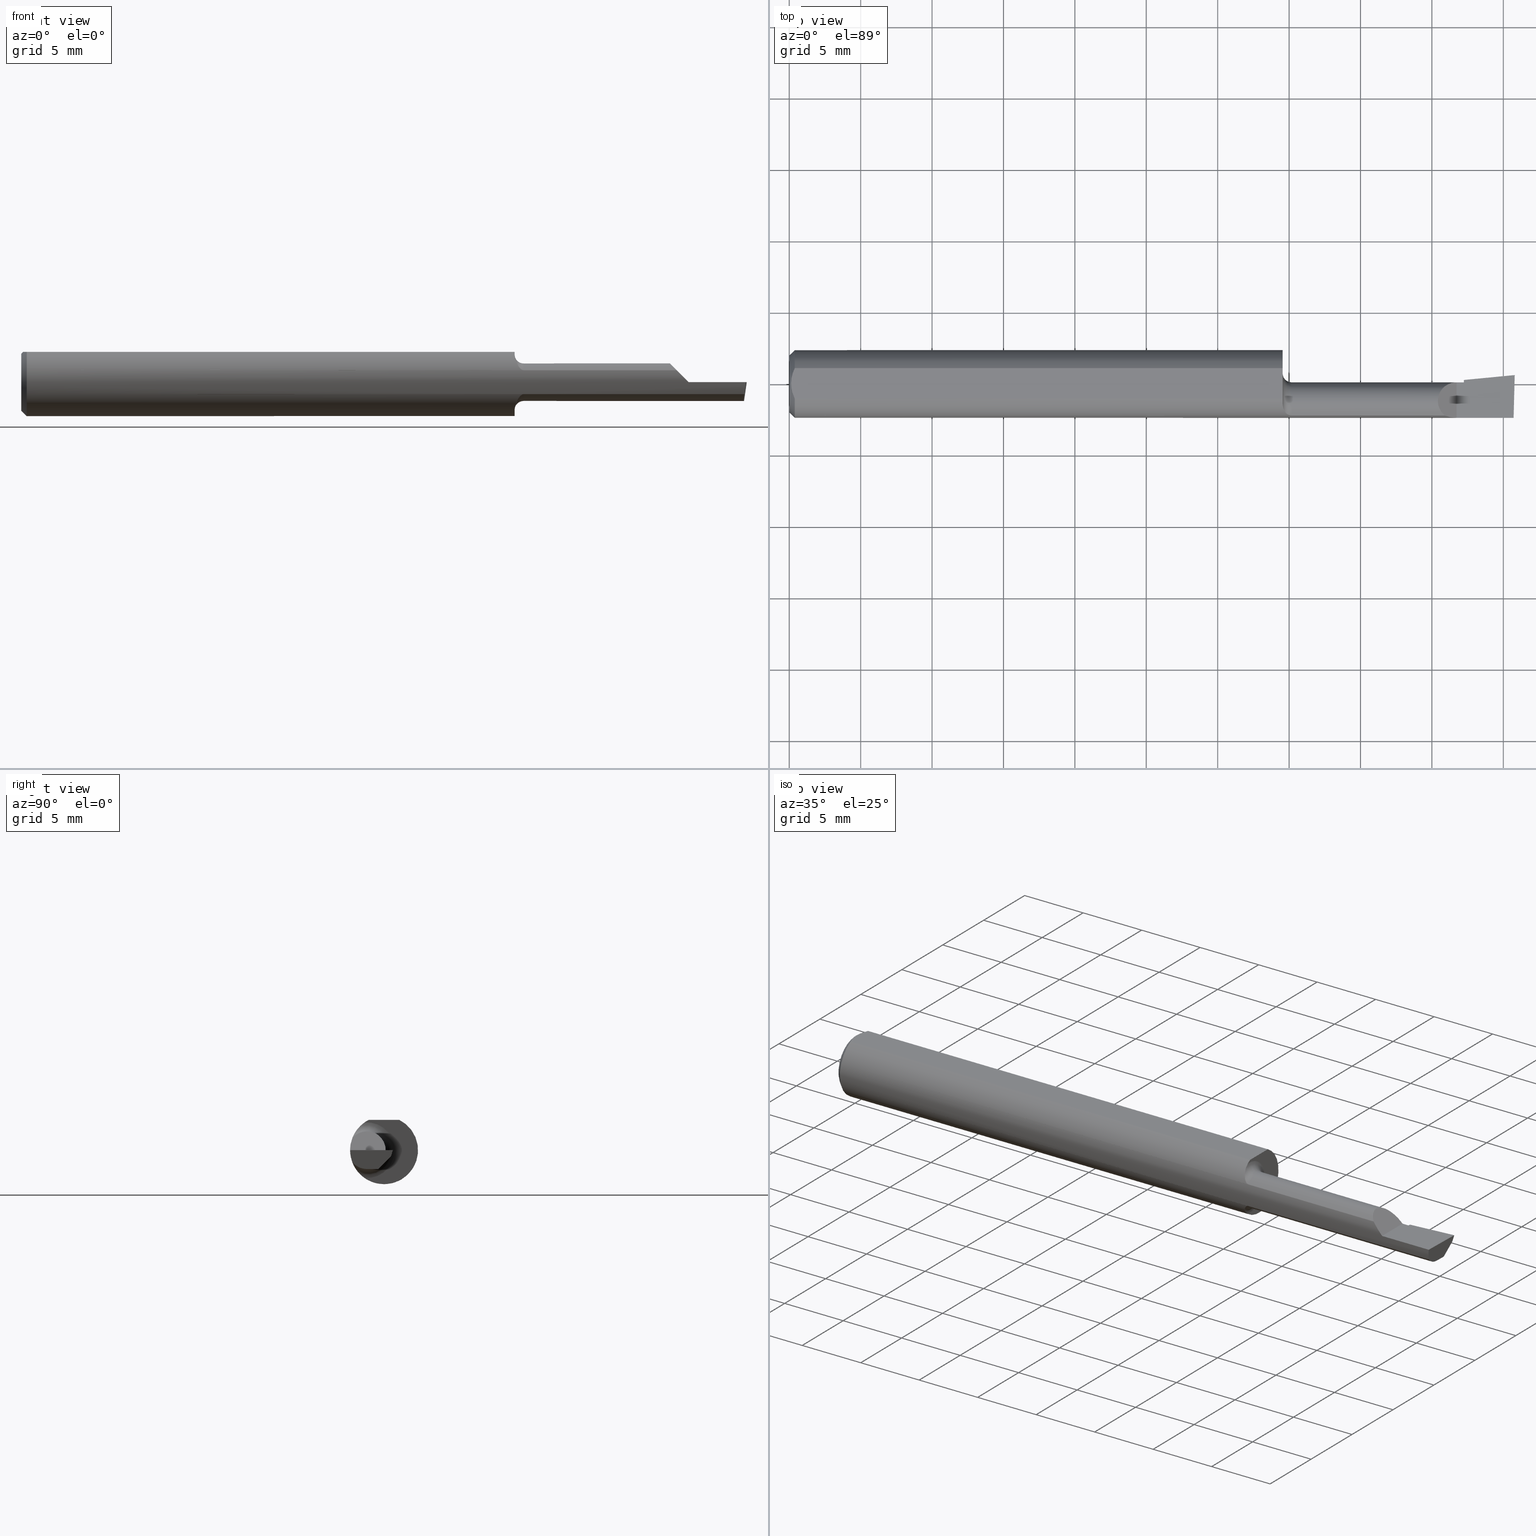
[diagram: canonical four-view strip — front | top / right | iso, engineering-drawing reading convention]
A machine part, canonical four-view strip (front | top / right | iso — engineering-drawing reading convention). The complete STEP part file that produces these views, byte-faithful:
ISO-10303-21;
HEADER;
FILE_DESCRIPTION (( 'STEP AP203' ),
    '1' );
FILE_NAME ('217297-B120600.STEP',
    '2024-04-22T22:32:10',
    ( '' ),
    ( '' ),
    'SwSTEP 2.0',
    'SolidWorks 2022',
    '' );
FILE_SCHEMA (( 'CONFIG_CONTROL_DESIGN' ));
ENDSEC;

DATA;
#1 = VERTEX_POINT ( 'NONE', #547 ) ;
#2 = PERSON_AND_ORGANIZATION ( #248, #254 ) ;
#3 = VECTOR ( 'NONE', #59, 39.37007874015748143 ) ;
#4 = CARTESIAN_POINT ( 'NONE',  ( 1.996910061254836721, -0.09360000000000012754, -6.663204267364690931E-17 ) ) ;
#5 = VERTEX_POINT ( 'NONE', #167 ) ;
#6 = DATE_TIME_ROLE ( 'classification_date' ) ;
#7 = CARTESIAN_POINT ( 'NONE',  ( 1.859999999999999876, 0.004399999999999992459, 1.030335658007946637E-15 ) ) ;
#8 = AXIS2_PLACEMENT_3D ( 'NONE', #170, #459, #118 ) ;
#9 = ORIENTED_EDGE ( 'NONE', *, *, #255, .F. ) ;
#10 = COORDINATED_UNIVERSAL_TIME_OFFSET ( 8, 0, .BEHIND. ) ;
#11 = ADVANCED_FACE ( 'NONE', ( #349 ), #427, .F. ) ;
#12 = ORIENTED_EDGE ( 'NONE', *, *, #304, .F. ) ;
#13 = VERTEX_POINT ( 'NONE', #493 ) ;
#14 = APPROVAL_PERSON_ORGANIZATION ( #494, #166, #62 ) ;
#15 = CARTESIAN_POINT ( 'NONE',  ( 1.991742529076753199, -0.04749999999999999362, -0.05189999999999998087 ) ) ;
#16 = CARTESIAN_POINT ( 'NONE',  ( 1.992819506803471308, -0.2498119721683277616, -6.435184055121738529E-17 ) ) ;
#17 = EDGE_CURVE ( 'NONE', #445, #13, #540, .T. ) ;
#18 = COORDINATED_UNIVERSAL_TIME_OFFSET ( 8, 0, .BEHIND. ) ;
#19 = CARTESIAN_POINT ( 'NONE',  ( 1.359999999999999876, -0.04209513035969843220, 0.08360000000000000764 ) ) ;
#20 = AXIS2_PLACEMENT_3D ( 'NONE', #341, #532, #295 ) ;
#21 = CARTESIAN_POINT ( 'NONE',  ( 5.659797890829555466E-31, -0.09359999999999998876, 1.030335658007946046E-15 ) ) ;
#22 = DIRECTION ( 'NONE',  ( 0.000000000000000000, -1.000000000000000000, 0.000000000000000000 ) ) ;
#23 = DIRECTION ( 'NONE',  ( -4.268512490100411279E-18, -1.000000000000000000, 0.000000000000000000 ) ) ;
#24 = DIRECTION ( 'NONE',  ( -1.000000000000000000, 4.268512490100411279E-18, -0.000000000000000000 ) ) ;
#25 = ADVANCED_FACE ( 'NONE', ( #448 ), #450, .T. ) ;
#26 = AXIS2_PLACEMENT_3D ( 'NONE', #356, #544, #70 ) ;
#27 = VERTEX_POINT ( 'NONE', #264 ) ;
#28 = CARTESIAN_POINT ( 'NONE',  ( 1.384999999999999787, -0.04749999999999999362, 0.000000000000000000 ) ) ;
#29 = AXIS2_PLACEMENT_3D ( 'NONE', #433, #226, #421 ) ;
#30 = CARTESIAN_POINT ( 'NONE',  ( 1.859999999999999876, 0.01091953325234439054, 0.000000000000000000 ) ) ;
#31 = VECTOR ( 'NONE', #179, 39.37007874015748143 ) ;
#32 = DIRECTION ( 'NONE',  ( 0.000000000000000000, 1.000000000000000000, 0.000000000000000000 ) ) ;
#33 = DIRECTION ( 'NONE',  ( -0.7071067811865516806, 0.000000000000000000, 0.7071067811865433539 ) ) ;
#34 = ORIENTED_EDGE ( 'NONE', *, *, #488, .T. ) ;
#35 = LINE ( 'NONE', #601, #451 ) ;
#36 = CARTESIAN_POINT ( 'NONE',  ( 1.360447921123109527, -0.06231628215915097774, 0.07004382716008764054 ) ) ;
#37 = AXIS2_PLACEMENT_3D ( 'NONE', #612, #325, #230 ) ;
#38 = APPLICATION_PROTOCOL_DEFINITION ( 'international standard', 'config_control_design', 1994, #129 ) ;
#39 = CARTESIAN_POINT ( 'NONE',  ( 1.859999999999999876, -0.02123896744732987896, -0.04476570304672537748 ) ) ;
#40 = AXIS2_PLACEMENT_3D ( 'NONE', #551, #594, #72 ) ;
#41 = CC_DESIGN_PERSON_AND_ORGANIZATION_ASSIGNMENT ( #529, #347, ( #309 ) ) ;
#42 = CARTESIAN_POINT ( 'NONE',  ( 1.828723181872633941, -0.09360000000000001652, 0.01127681812736603534 ) ) ;
#43 = EDGE_CURVE ( 'NONE', #262, #510, #256, .T. ) ;
#44 = CARTESIAN_POINT ( 'NONE',  ( 1.859999999999999876, -0.01401885001904131824, -0.03732347359622880528 ) ) ;
#45 = VERTEX_POINT ( 'NONE', #113 ) ;
#46 = ADVANCED_FACE ( 'NONE', ( #595 ), #305, .F. ) ;
#47 = CARTESIAN_POINT ( 'NONE',  ( 1.622500000000000053, -0.08761684210526321515, 0.03292793615611789432 ) ) ;
#48 = ORIENTED_EDGE ( 'NONE', *, *, #588, .T. ) ;
#49 = CIRCLE ( 'NONE', #306, 0.09360000000000001652 ) ;
#50 = APPROVAL ( #389, 'UNSPECIFIED' ) ;
#51 = ORIENTED_EDGE ( 'NONE', *, *, #124, .T. ) ;
#52 = VECTOR ( 'NONE', #233, 39.37007874015748143 ) ;
#53 = EDGE_LOOP ( 'NONE', ( #191, #538 ) ) ;
#54 = ORIENTED_EDGE ( 'NONE', *, *, #606, .T. ) ;
#55 = CC_DESIGN_PERSON_AND_ORGANIZATION_ASSIGNMENT ( #2, #381, ( #324 ) ) ;
#56 = PERSON_AND_ORGANIZATION ( #248, #254 ) ;
#57 = DIRECTION ( 'NONE',  ( 0.7071067811865391350, 8.659560562355035164E-17, 0.7071067811865558994 ) ) ;
#58 = ORIENTED_EDGE ( 'NONE', *, *, #460, .T. ) ;
#59 = DIRECTION ( 'NONE',  ( -1.000000000000000000, -0.000000000000000000, -0.000000000000000000 ) ) ;
#60 = CIRCLE ( 'NONE', #94, 0.05189999999999998781 ) ;
#61 = EDGE_LOOP ( 'NONE', ( #388, #68, #145, #276 ) ) ;
#62 = APPROVAL_ROLE ( '' ) ;
#63 = CARTESIAN_POINT ( 'NONE',  ( 1.840000000000000080, 0.004399999999999856283, 1.959434878635762025E-17 ) ) ;
#64 = EDGE_CURVE ( 'NONE', #428, #5, #206, .T. ) ;
#65 = DIRECTION ( 'NONE',  ( -1.000000000000000000, 4.268512490100411279E-18, 0.000000000000000000 ) ) ;
#66 = PERSON_AND_ORGANIZATION_ROLE ( 'creator' ) ;
#67 = CARTESIAN_POINT ( 'NONE',  ( 0.000000000000000000, 0.04209513035969837669, 0.08360000000000000764 ) ) ;
#68 = ORIENTED_EDGE ( 'NONE', *, *, #543, .T. ) ;
#69 = CARTESIAN_POINT ( 'NONE',  ( 1.359999999999999876, 0.1436000000000000332, 0.08359999999999999376 ) ) ;
#70 = DIRECTION ( 'NONE',  ( -4.268512490100411279E-18, -1.000000000000000000, 0.000000000000000000 ) ) ;
#71 = DIRECTION ( 'NONE',  ( 0.1219104985252683904, 0.000000000000000000, 0.9925410975618695897 ) ) ;
#72 = DIRECTION ( 'NONE',  ( 0.000000000000000000, -1.000000000000000000, 0.000000000000000000 ) ) ;
#73 = FACE_OUTER_BOUND ( 'NONE', #369, .T. ) ;
#74 = ADVANCED_FACE ( 'NONE', ( #395 ), #504, .T. ) ;
#75 = CIRCLE ( 'NONE', #8, 0.07859999999999965625 ) ;
#76 = CARTESIAN_POINT ( 'NONE',  ( 1.840000000000000080, -0.2500000000000000555, 1.959434878635762025E-17 ) ) ;
#77 = VECTOR ( 'NONE', #249, 39.37007874015748143 ) ;
#78 = EDGE_LOOP ( 'NONE', ( #169, #533, #579 ) ) ;
#79 = DIRECTION ( 'NONE',  ( 0.9953961983671787417, 0.09584575252022461966, -5.467869873542577569E-16 ) ) ;
#80 = CARTESIAN_POINT ( 'NONE',  ( 0.000000000000000000, 0.000000000000000000, 0.000000000000000000 ) ) ;
#81 = EDGE_LOOP ( 'NONE', ( #286, #335, #244 ) ) ;
#82 = CARTESIAN_POINT ( 'NONE',  ( 1.359999999999999876, 0.000000000000000000, 0.000000000000000000 ) ) ;
#83 = VECTOR ( 'NONE', #122, 39.37007874015748854 ) ;
#84 = CARTESIAN_POINT ( 'NONE',  ( 1.360000000000000542, -0.06265771844804363111, -0.07038493979599889927 ) ) ;
#85 = CARTESIAN_POINT ( 'NONE',  ( 1.373927022897598604, -0.08480630317146348185, 0.03967462311308213307 ) ) ;
#86 = VECTOR ( 'NONE', #265, 39.37007874015748854 ) ;
#87 = EDGE_CURVE ( 'NONE', #262, #445, #591, .T. ) ;
#88 = LINE ( 'NONE', #44, #537 ) ;
#89 = VERTEX_POINT ( 'NONE', #39 ) ;
#90 = CARTESIAN_POINT ( 'NONE',  ( 1.369440191089343450, -0.08177118545005535033, -0.04577359403162513385 ) ) ;
#91 = ORIENTED_EDGE ( 'NONE', *, *, #368, .T. ) ;
#92 = CARTESIAN_POINT ( 'NONE',  ( 1.859999999999999876, -0.2500000000000000555, 8.608030207862190690E-18 ) ) ;
#93 = VERTEX_POINT ( 'NONE', #472 ) ;
#94 = AXIS2_PLACEMENT_3D ( 'NONE', #607, #130, #362 ) ;
#95 = DIRECTION ( 'NONE',  ( 1.000000000000000000, 0.000000000000000000, 0.000000000000000000 ) ) ;
#96 = ORIENTED_EDGE ( 'NONE', *, *, #431, .T. ) ;
#97 = DATE_AND_TIME ( #299, #184 ) ;
#98 = CARTESIAN_POINT ( 'NONE',  ( 0.005000000000000236026, 1.025183009042025117E-17, 0.08360000000000000764 ) ) ;
#99 = APPROVAL ( #385, 'UNSPECIFIED' ) ;
#100 = ORIENTED_EDGE ( 'NONE', *, *, #527, .F. ) ;
#101 = APPROVAL_DATE_TIME ( #343, #50 ) ;
#102 = ADVANCED_FACE ( 'NONE', ( #223 ), #365, .F. ) ;
#103 = CARTESIAN_POINT ( 'NONE',  ( 1.991742529076753199, -0.04749999999999999362, -0.05189999999999998087 ) ) ;
#104 = EDGE_LOOP ( 'NONE', ( #561, #156 ) ) ;
#105 = COORDINATED_UNIVERSAL_TIME_OFFSET ( 8, 0, .BEHIND. ) ;
#106 = VECTOR ( 'NONE', #288, 39.37007874015748143 ) ;
#107 = EDGE_CURVE ( 'NONE', #89, #5, #88, .T. ) ;
#108 = CARTESIAN_POINT ( 'NONE',  ( 2.009953961983672155, 0.02535845752520198698, -6.829619984160658046E-17 ) ) ;
#109 = CIRCLE ( 'NONE', #590, 0.05189999999999997393 ) ;
#110 = ORIENTED_EDGE ( 'NONE', *, *, #208, .T. ) ;
#111 = PERSON_AND_ORGANIZATION ( #248, #254 ) ;
#112 = CARTESIAN_POINT ( 'NONE',  ( 0.005000000000000236026, 1.025183009042025117E-17, 0.08360000000000000764 ) ) ;
#113 = CARTESIAN_POINT ( 'NONE',  ( 0.01499999999999999944, -0.04209513035969835587, 0.08360000000000000764 ) ) ;
#114 = DIRECTION ( 'NONE',  ( 0.000000000000000000, 0.000000000000000000, 1.000000000000000000 ) ) ;
#115 = CIRCLE ( 'NONE', #196, 0.05189999999999998781 ) ;
#116 = ADVANCED_FACE ( 'NONE', ( #171 ), #516, .T. ) ;
#117 = CARTESIAN_POINT ( 'NONE',  ( 1.840000000000000080, -0.2500000000000000555, 1.959434878635762025E-17 ) ) ;
#118 = DIRECTION ( 'NONE',  ( 0.000000000000000000, 0.000000000000000000, 1.000000000000000000 ) ) ;
#119 = ORIENTED_EDGE ( 'NONE', *, *, #238, .F. ) ;
#120 = PRODUCT_DEFINITION_SHAPE ( 'NONE', 'NONE',  #162 ) ;
#121 = CARTESIAN_POINT ( 'NONE',  ( 0.000000000000000000, 1.054420894065869177E-17, 0.07859999999999965625 ) ) ;
#122 = DIRECTION ( 'NONE',  ( -0.9953961983671800740, -0.09584575252021028391, -2.116984158397002112E-18 ) ) ;
#123 = PRODUCT_DEFINITION_FORMATION_WITH_SPECIFIED_SOURCE ( 'ANY', '', #309, .NOT_KNOWN. ) ;
#124 = EDGE_CURVE ( 'NONE', #13, #279, #132, .T. ) ;
#125 = DIRECTION ( 'NONE',  ( 0.7071067811865391350, 0.000000000000000000, -0.7071067811865558994 ) ) ;
#126 = LINE ( 'NONE', #67, #266 ) ;
#127 = B_SPLINE_CURVE_WITH_KNOTS ( 'NONE', 3,
 ( #140, #558, #36, #416, #177, #363, #420, #85, #600, #560, #506, #134 ),
 .UNSPECIFIED., .F., .F.,
 ( 4, 2, 2, 2, 2, 4 ),
 ( 1.138943784590769715E-05, 0.0004225593089546684123, 0.0008337291800634291867, 0.001244899051172189798, 0.001450483986726570267, 0.001656068922280950952 ),
 .UNSPECIFIED. ) ;
#128 = ORIENTED_EDGE ( 'NONE', *, *, #180, .F. ) ;
#129 = APPLICATION_CONTEXT ( 'configuration controlled 3d designs of mechanical parts and assemblies' ) ;
#130 = DIRECTION ( 'NONE',  ( -1.000000000000000000, 4.268512490100411279E-18, -0.000000000000000000 ) ) ;
#131 = EDGE_CURVE ( 'NONE', #478, #481, #315, .T. ) ;
#132 = LINE ( 'NONE', #278, #146 ) ;
#133 = CARTESIAN_POINT ( 'NONE',  ( 1.859999999999999876, -0.01401885001904131824, -0.03732347359622880528 ) ) ;
#134 = CARTESIAN_POINT ( 'NONE',  ( 1.384999999999999787, -0.08761684210526317351, 0.03292793615611790126 ) ) ;
#135 = ORIENTED_EDGE ( 'NONE', *, *, #522, .F. ) ;
#136 = CARTESIAN_POINT ( 'NONE',  ( 1.817628038131437584, -0.09158396120079809188, 0.02237196186856219363 ) ) ;
#137 = DIRECTION ( 'NONE',  ( 1.000000000000000000, -4.268512490100411279E-18, 0.000000000000000000 ) ) ;
#138 = LINE ( 'NONE', #364, #371 ) ;
#139 = ADVANCED_BREP_SHAPE_REPRESENTATION ( '217297-B120600', ( #188, #578 ), #418 ) ;
#140 = CARTESIAN_POINT ( 'NONE',  ( 1.359999999999999876, -0.05372210526315804313, 0.07664786628533222512 ) ) ;
#141 = ORIENTED_EDGE ( 'NONE', *, *, #488, .F. ) ;
#142 = AXIS2_PLACEMENT_3D ( 'NONE', #406, #599, #400 ) ;
#143 = ORIENTED_EDGE ( 'NONE', *, *, #43, .F. ) ;
#144 = CARTESIAN_POINT ( 'NONE',  ( 1.359999999999999876, -0.05372210526315804313, -0.07664786628533222512 ) ) ;
#145 = ORIENTED_EDGE ( 'NONE', *, *, #616, .F. ) ;
#146 = VECTOR ( 'NONE', #137, 39.37007874015748143 ) ;
#147 = APPROVAL_ROLE ( '' ) ;
#148 = ORIENTED_EDGE ( 'NONE', *, *, #107, .F. ) ;
#149 = AXIS2_PLACEMENT_3D ( 'NONE', #581, #489, #447 ) ;
#150 = PLANE ( 'NONE',  #20 ) ;
#151 = EDGE_CURVE ( 'NONE', #1, #220, #603, .T. ) ;
#152 = ORIENTED_EDGE ( 'NONE', *, *, #368, .F. ) ;
#153 = PERSON_AND_ORGANIZATION_ROLE ( 'creator' ) ;
#154 = CARTESIAN_POINT ( 'NONE',  ( 1.859999999999999876, -0.04749999999999999362, -0.05189999999999998087 ) ) ;
#155 = CC_DESIGN_APPROVAL ( #166, ( #123 ) ) ;
#156 = ORIENTED_EDGE ( 'NONE', *, *, #131, .T. ) ;
#157 = EDGE_CURVE ( 'NONE', #342, #458, #379, .T. ) ;
#158 = MECHANICAL_CONTEXT ( 'NONE', #129, 'mechanical' ) ;
#159 = AXIS2_PLACEMENT_3D ( 'NONE', #549, #203, #552 ) ;
#160 = CARTESIAN_POINT ( 'NONE',  ( 0.01203648650249650523, 0.03550565407121123590, 0.08360000000000000764 ) ) ;
#161 = DIRECTION ( 'NONE',  ( 0.000000000000000000, 0.000000000000000000, 1.000000000000000000 ) ) ;
#162 = PRODUCT_DEFINITION ( 'UNKNOWN', '', #123, #463 ) ;
#163 = DIRECTION ( 'NONE',  ( 1.000000000000000000, -4.268512490100411279E-18, 0.000000000000000000 ) ) ;
#164 = APPLICATION_CONTEXT ( 'configuration controlled 3d designs of mechanical parts and assemblies' ) ;
#165 = CARTESIAN_POINT ( 'NONE',  ( 1.993022307651336700, -0.08761684210526321515, -0.03292793615611789432 ) ) ;
#166 = APPROVAL ( #482, 'UNSPECIFIED' ) ;
#167 = CARTESIAN_POINT ( 'NONE',  ( 1.859999999999999876, -0.02816034256933547600, -0.05189999999999998087 ) ) ;
#168 = LINE ( 'NONE', #268, #86 ) ;
#169 = ORIENTED_EDGE ( 'NONE', *, *, #301, .F. ) ;
#170 = CARTESIAN_POINT ( 'NONE',  ( 0.000000000000000000, 0.000000000000000000, 0.000000000000000000 ) ) ;
#171 = FACE_OUTER_BOUND ( 'NONE', #571, .T. ) ;
#172 = EDGE_CURVE ( 'NONE', #583, #567, #49, .T. ) ;
#173 = CARTESIAN_POINT ( 'NONE',  ( 1.384999999999999787, -0.08761684210526317351, -0.03292793615611790820 ) ) ;
#174 = DIRECTION ( 'NONE',  ( 0.000000000000000000, 0.000000000000000000, 1.000000000000000000 ) ) ;
#175 = DIRECTION ( 'NONE',  ( -2.972230601656782806E-18, -0.6963153109074925462, -0.7177360153954948085 ) ) ;
#176 = AXIS2_PLACEMENT_3D ( 'NONE', #403, #596, #32 ) ;
#177 = CARTESIAN_POINT ( 'NONE',  ( 1.363573898438560805, -0.07331853621787791375, 0.05840549129485483881 ) ) ;
#178 = ORIENTED_EDGE ( 'NONE', *, *, #336, .F. ) ;
#179 = DIRECTION ( 'NONE',  ( -1.000000000000000000, 5.691349986800549142E-18, -0.000000000000000000 ) ) ;
#180 = EDGE_CURVE ( 'NONE', #45, #375, #520, .T. ) ;
#181 = DIRECTION ( 'NONE',  ( 4.268512490100411279E-18, 1.000000000000000000, 0.000000000000000000 ) ) ;
#182 = ORIENTED_EDGE ( 'NONE', *, *, #234, .T. ) ;
#183 = CARTESIAN_POINT ( 'NONE',  ( 1.359999999999999876, -0.05372210526315804313, -0.07664786628533222512 ) ) ;
#184 = LOCAL_TIME ( 15, 32, 10.00000000000000000, #105 ) ;
#185 = CARTESIAN_POINT ( 'NONE',  ( 1.859999999999999876, -0.04749999999999999362, 0.000000000000000000 ) ) ;
#186 = AXIS2_PLACEMENT_3D ( 'NONE', #267, #391, #161 ) ;
#187 = ORIENTED_EDGE ( 'NONE', *, *, #172, .T. ) ;
#188 = MANIFOLD_SOLID_BREP ( 'Extrude7', #415 ) ;
#189 = ORIENTED_EDGE ( 'NONE', *, *, #460, .F. ) ;
#190 = CARTESIAN_POINT ( 'NONE',  ( 1.359999999999999876, -0.05372210526315804313, 0.07664786628533222512 ) ) ;
#191 = ORIENTED_EDGE ( 'NONE', *, *, #304, .T. ) ;
#192 = ORIENTED_EDGE ( 'NONE', *, *, #409, .F. ) ;
#193 = CARTESIAN_POINT ( 'NONE',  ( 1.859999999999999876, 0.005698073100777778163, -0.01700000000000000122 ) ) ;
#194 =( BOUNDED_CURVE ( )  B_SPLINE_CURVE ( 3, ( #521, #42, #136, #366 ),
 .UNSPECIFIED., .F., .T. ) 
 B_SPLINE_CURVE_WITH_KNOTS ( ( 4, 4 ),
 ( 4.712388980384689674, 5.071876106261395734 ),
 .UNSPECIFIED. ) 
 CURVE ( )  GEOMETRIC_REPRESENTATION_ITEM ( )  RATIONAL_B_SPLINE_CURVE ( ( 1.000000000000000000, 0.9892597135044076673, 0.9892597135044076673, 1.000000000000000000 ) ) 
 REPRESENTATION_ITEM ( '' )  );
#195 = ORIENTED_EDGE ( 'NONE', *, *, #620, .F. ) ;
#196 = AXIS2_PLACEMENT_3D ( 'NONE', #185, #367, #566 ) ;
#197 = DATE_TIME_ROLE ( 'creation_date' ) ;
#198 = CARTESIAN_POINT ( 'NONE',  ( 1.761940995672496957, -0.05057322517486229768, 0.07805900432750242923 ) ) ;
#199 = ORIENTED_EDGE ( 'NONE', *, *, #620, .T. ) ;
#200 = DIRECTION ( 'NONE',  ( 0.000000000000000000, 0.000000000000000000, 1.000000000000000000 ) ) ;
#201 = EDGE_LOOP ( 'NONE', ( #189, #430, #622, #128, #9 ) ) ;
#202 = CARTESIAN_POINT ( 'NONE',  ( 1.991784456001939763, -0.07759022324566727802, -0.04514359047872660430 ) ) ;
#203 = DIRECTION ( 'NONE',  ( 0.000000000000000000, -1.189000693621284344E-16, -1.000000000000000000 ) ) ;
#204 = CALENDAR_DATE ( 2024, 22, 4 ) ;
#205 = DIRECTION ( 'NONE',  ( 0.000000000000000000, 1.000000000000000000, 4.268512490100410663E-17 ) ) ;
#206 = LINE ( 'NONE', #497, #83 ) ;
#207 = CARTESIAN_POINT ( 'NONE',  ( 0.000000000000000000, 0.000000000000000000, 0.000000000000000000 ) ) ;
#208 = EDGE_CURVE ( 'NONE', #555, #487, #127, .T. ) ;
#209 = DIRECTION ( 'NONE',  ( -1.000000000000000000, -0.000000000000000000, -0.000000000000000000 ) ) ;
#210 = DIRECTION ( 'NONE',  ( -1.000000000000000000, -0.000000000000000000, -0.000000000000000000 ) ) ;
#211 = CARTESIAN_POINT ( 'NONE',  ( 1.253289949938072301, -0.04749999999999999362, 3.418835249456273698E-16 ) ) ;
#212 = DIRECTION ( 'NONE',  ( 0.000000000000000000, 0.000000000000000000, -1.000000000000000000 ) ) ;
#213 = ADVANCED_FACE ( 'NONE', ( #274 ), #358, .F. ) ;
#214 = ORIENTED_EDGE ( 'NONE', *, *, #151, .F. ) ;
#215 = CARTESIAN_POINT ( 'NONE',  ( 1.996910061254836721, -0.09360000000000012754, -6.663204267364690931E-17 ) ) ;
#216 = EDGE_CURVE ( 'NONE', #89, #228, #115, .T. ) ;
#217 = DIRECTION ( 'NONE',  ( -1.000000000000000000, 4.268512490100411279E-18, 0.000000000000000000 ) ) ;
#218 = CARTESIAN_POINT ( 'NONE',  ( 0.000000000000000000, 0.000000000000000000, -0.07859999999999965625 ) ) ;
#219 = DIRECTION ( 'NONE',  ( 0.000000000000000000, 0.000000000000000000, 1.000000000000000000 ) ) ;
#220 = VERTEX_POINT ( 'NONE', #328 ) ;
#221 = LINE ( 'NONE', #69, #405 ) ;
#222 = VECTOR ( 'NONE', #402, 39.37007874015748854 ) ;
#223 = FACE_OUTER_BOUND ( 'NONE', #78, .T. ) ;
#224 = B_SPLINE_CURVE_WITH_KNOTS ( 'NONE', 3,
 ( #173, #568, #241, #229, #565, #90, #277, #333, #84, #144 ),
 .UNSPECIFIED., .F., .F.,
 ( 4, 2, 2, 2, 4 ),
 ( 1.963033868560647056E-07, 0.0002078258643200496373, 0.0004154554252532432221, 0.0008307145471196418843, 0.001661232790852446147 ),
 .UNSPECIFIED. ) ;
#225 = ADVANCED_FACE ( 'NONE', ( #519 ), #282, .F. ) ;
#226 = DIRECTION ( 'NONE',  ( -0.06894566448119621160, 0.7160281025913035613, -0.6946583704589933683 ) ) ;
#227 = DIRECTION ( 'NONE',  ( -1.000000000000000000, 4.268512490100411279E-18, -0.000000000000000000 ) ) ;
#228 = VERTEX_POINT ( 'NONE', #554 ) ;
#229 = CARTESIAN_POINT ( 'NONE',  ( 1.375623196656931446, -0.08570318752220022762, -0.03767279651384476680 ) ) ;
#230 = DIRECTION ( 'NONE',  ( 0.000000000000000000, -1.000000000000000000, -4.268512490100410663E-17 ) ) ;
#231 = ORIENTED_EDGE ( 'NONE', *, *, #301, .T. ) ;
#232 = LENGTH_MEASURE_WITH_UNIT ( LENGTH_MEASURE( 0.02539999999999999897 ), #377 );
#233 = DIRECTION ( 'NONE',  ( 1.000000000000000000, -4.268512490100411279E-18, 0.000000000000000000 ) ) ;
#234 = EDGE_CURVE ( 'NONE', #342, #567, #126, .T. ) ;
#235 = ORIENTED_EDGE ( 'NONE', *, *, #336, .T. ) ;
#236 =( NAMED_UNIT ( * ) SI_UNIT ( $, .STERADIAN. ) SOLID_ANGLE_UNIT ( ) );
#237 = CIRCLE ( 'NONE', #176, 0.09360000000000001652 ) ;
#238 = EDGE_CURVE ( 'NONE', #1, #298, #374, .T. ) ;
#239 = ORIENTED_EDGE ( 'NONE', *, *, #310, .T. ) ;
#240 = VERTEX_POINT ( 'NONE', #486 ) ;
#241 = CARTESIAN_POINT ( 'NONE',  ( 1.379715439975441882, -0.08710361937740859761, -0.03431086475148217158 ) ) ;
#242 = ORIENTED_EDGE ( 'NONE', *, *, #131, .F. ) ;
#243 = SECURITY_CLASSIFICATION_LEVEL ( 'unclassified' ) ;
#244 = ORIENTED_EDGE ( 'NONE', *, *, #319, .F. ) ;
#245 = DATE_AND_TIME ( #541, #572 ) ;
#246 = CARTESIAN_POINT ( 'NONE',  ( 1.997999968238723945, 0.02048992710402969958, -0.01544976510332455449 ) ) ;
#247 = VERTEX_POINT ( 'NONE', #259 ) ;
#248 = PERSON ( 'UNSPECIFIED', 'UNSPECIFIED', 'UNSPECIFIED', ('UNSPECIFIED'), ('UNSPECIFIED'), ('UNSPECIFIED') ) ;
#249 = DIRECTION ( 'NONE',  ( 0.1053106618241601428, 0.6976485211320175850, 0.7086580314005240799 ) ) ;
#250 = ORIENTED_EDGE ( 'NONE', *, *, #440, .T. ) ;
#251 = EDGE_LOOP ( 'NONE', ( #178, #586, #434, #446, #517 ) ) ;
#252 = COORDINATED_UNIVERSAL_TIME_OFFSET ( 8, 0, .BEHIND. ) ;
#253 = DIRECTION ( 'NONE',  ( -0.09165774897393341725, 0.9519021185660616613, -0.2923717047227294974 ) ) ;
#254 = ORGANIZATION ( 'UNSPECIFIED', 'UNSPECIFIED', '' ) ;
#255 = EDGE_CURVE ( 'NONE', #351, #45, #436, .T. ) ;
#256 = LINE ( 'NONE', #16, #222 ) ;
#257 = CALENDAR_DATE ( 2024, 22, 4 ) ;
#258 = AXIS2_PLACEMENT_3D ( 'NONE', #76, #509, #33 ) ;
#259 = CARTESIAN_POINT ( 'NONE',  ( 1.859999999999999876, 0.01091953325234668211, 1.037248535094399938E-15 ) ) ;
#260 = DIRECTION ( 'NONE',  ( -0.000000000000000000, 1.000000000000000000, -0.000000000000000000 ) ) ;
#261 = CARTESIAN_POINT ( 'NONE',  ( 2.000000000000000000, -0.2500000000000000555, -6.829619984160658046E-17 ) ) ;
#262 = VERTEX_POINT ( 'NONE', #4 ) ;
#263 = FACE_OUTER_BOUND ( 'NONE', #332, .T. ) ;
#264 = CARTESIAN_POINT ( 'NONE',  ( 1.859999999999999876, -0.001959391508022335134, -0.02489303071504973125 ) ) ;
#265 = DIRECTION ( 'NONE',  ( -0.02617694830785725901, -0.9996573249755575929, -4.246274422243611542E-17 ) ) ;
#266 = VECTOR ( 'NONE', #300, 39.37007874015748143 ) ;
#267 = CARTESIAN_POINT ( 'NONE',  ( 0.000000000000000000, 0.000000000000000000, 0.000000000000000000 ) ) ;
#268 = CARTESIAN_POINT ( 'NONE',  ( 1.991748187365210976, -0.04728391868154192129, -0.05189999999999998087 ) ) ;
#269 = CARTESIAN_POINT ( 'NONE',  ( 0.01499999999999999598, 0.000000000000000000, 0.000000000000000000 ) ) ;
#270 = EDGE_LOOP ( 'NONE', ( #473, #404, #528, #312 ) ) ;
#271 = DIRECTION ( 'NONE',  ( -4.268512490100411279E-18, -1.000000000000000000, 1.189000693621284344E-16 ) ) ;
#272 = CARTESIAN_POINT ( 'NONE',  ( 1.622500000000000053, -0.08761684210526321515, -0.03292793615611789432 ) ) ;
#273 = AXIS2_PLACEMENT_3D ( 'NONE', #30, #217, #408 ) ;
#274 = FACE_OUTER_BOUND ( 'NONE', #270, .T. ) ;
#275 = EDGE_CURVE ( 'NONE', #428, #93, #297, .T. ) ;
#276 = ORIENTED_EDGE ( 'NONE', *, *, #444, .T. ) ;
#277 = CARTESIAN_POINT ( 'NONE',  ( 1.367214764395544346, -0.07927709071642491390, -0.05002561729526815160 ) ) ;
#278 = CARTESIAN_POINT ( 'NONE',  ( 2.215357982367771208E-19, 0.004399999999999967305, 1.030335658007946046E-15 ) ) ;
#279 = VERTEX_POINT ( 'NONE', #7 ) ;
#280 = CARTESIAN_POINT ( 'NONE',  ( 2.010452112766631938, 0.02018496383838347050, -0.01700000000000000122 ) ) ;
#281 = ADVANCED_FACE ( 'NONE', ( #346 ), #592, .T. ) ;
#282 = PLANE ( 'NONE',  #273 ) ;
#283 = ORIENTED_EDGE ( 'NONE', *, *, #502, .T. ) ;
#284 = CARTESIAN_POINT ( 'NONE',  ( 1.359999999999999876, 0.04209513035969836975, 0.08360000000000000764 ) ) ;
#285 = CC_DESIGN_APPROVAL ( #99, ( #162 ) ) ;
#286 = ORIENTED_EDGE ( 'NONE', *, *, #216, .F. ) ;
#287 = ORIENTED_EDGE ( 'NONE', *, *, #422, .F. ) ;
#288 = DIRECTION ( 'NONE',  ( 4.268512490100411279E-18, 1.000000000000000000, -2.344761903626518103E-33 ) ) ;
#289 = VECTOR ( 'NONE', #553, 39.37007874015748143 ) ;
#290 = EDGE_LOOP ( 'NONE', ( #214, #34, #617, #54, #152, #455, #380, #329, #432, #338, #182, #424, #100 ) ) ;
#291 = VECTOR ( 'NONE', #205, 39.37007874015748143 ) ;
#292 = APPROVAL_DATE_TIME ( #435, #99 ) ;
#293 = ORIENTED_EDGE ( 'NONE', *, *, #124, .F. ) ;
#294 = APPLICATION_PROTOCOL_DEFINITION ( 'international standard', 'config_control_design', 1994, #164 ) ;
#295 = DIRECTION ( 'NONE',  ( -4.268512490100411279E-18, -1.000000000000000000, 0.000000000000000000 ) ) ;
#296 = ORIENTED_EDGE ( 'NONE', *, *, #238, .T. ) ;
#297 = LINE ( 'NONE', #246, #77 ) ;
#298 = VERTEX_POINT ( 'NONE', #15 ) ;
#299 = CALENDAR_DATE ( 2024, 22, 4 ) ;
#300 = DIRECTION ( 'NONE',  ( 1.000000000000000000, 0.000000000000000000, 0.000000000000000000 ) ) ;
#301 = EDGE_CURVE ( 'NONE', #240, #13, #619, .T. ) ;
#302 = CARTESIAN_POINT ( 'NONE',  ( 1.859999999999999876, 0.01091953325234439054, 0.000000000000000000 ) ) ;
#303 = CARTESIAN_POINT ( 'NONE',  ( 0.01499999999999999598, 0.04209513035969837669, 0.08360000000000000764 ) ) ;
#304 = EDGE_CURVE ( 'NONE', #89, #27, #109, .T. ) ;
#305 = PLANE ( 'NONE',  #159 ) ;
#306 = AXIS2_PLACEMENT_3D ( 'NONE', #82, #320, #467 ) ;
#307 = CARTESIAN_POINT ( 'NONE',  ( 2.000188977433810411, 0.02486059946466786380, 0.001440373173037697452 ) ) ;
#308 = CARTESIAN_POINT ( 'NONE',  ( 1.995524967455634791, -0.09360000000000001652, -0.01127681812736614810 ) ) ;
#309 = PRODUCT ( '217297-B120600', '217297-B120600', '', ( #158 ) ) ;
#310 = EDGE_CURVE ( 'NONE', #375, #342, #407, .T. ) ;
#311 = FACE_OUTER_BOUND ( 'NONE', #373, .T. ) ;
#312 = ORIENTED_EDGE ( 'NONE', *, *, #319, .T. ) ;
#313 = LOCAL_TIME ( 15, 32, 10.00000000000000000, #252 ) ;
#314 = CARTESIAN_POINT ( 'NONE',  ( 1.992583253560378020, -0.01539402727707556845, -0.05189999999999998087 ) ) ;
#315 = CIRCLE ( 'NONE', #604, 0.07859999999999965625 ) ;
#316 = CARTESIAN_POINT ( 'NONE',  ( 1.359999999999999876, 0.02939999999999994007, 0.000000000000000000 ) ) ;
#317 = CARTESIAN_POINT ( 'NONE',  ( 0.01499999999999999598, 0.000000000000000000, -0.09360000000000001652 ) ) ;
#318 = AXIS2_PLACEMENT_3D ( 'NONE', #108, #253, #542 ) ;
#319 = EDGE_CURVE ( 'NONE', #228, #5, #536, .T. ) ;
#320 = DIRECTION ( 'NONE',  ( 1.000000000000000000, -4.268512490100411279E-18, 0.000000000000000000 ) ) ;
#321 = FACE_OUTER_BOUND ( 'NONE', #104, .T. ) ;
#322 = CARTESIAN_POINT ( 'NONE',  ( 0.005975039161239525769, -0.01453776427033148279, 0.08359999999999997988 ) ) ;
#323 = EDGE_LOOP ( 'NONE', ( #110, #96, #353, #287 ) ) ;
#324 = SECURITY_CLASSIFICATION ( '', '', #243 ) ;
#325 = DIRECTION ( 'NONE',  ( -2.429359850419095604E-34, -4.268512490100410663E-17, 1.000000000000000000 ) ) ;
#326 = PLANE ( 'NONE',  #29 ) ;
#327 = VECTOR ( 'NONE', #125, 39.37007874015748143 ) ;
#328 = CARTESIAN_POINT ( 'NONE',  ( 1.384999999999999787, -0.08761684210526317351, -0.03292793615611790820 ) ) ;
#329 = ORIENTED_EDGE ( 'NONE', *, *, #255, .T. ) ;
#330 = ADVANCED_FACE ( 'NONE', ( #344 ), #539, .T. ) ;
#331 = FACE_OUTER_BOUND ( 'NONE', #609, .T. ) ;
#332 = EDGE_LOOP ( 'NONE', ( #296, #575, #514, #283, #143, #141 ) ) ;
#333 = CARTESIAN_POINT ( 'NONE',  ( 1.361744805833127403, -0.07033817883199362797, -0.06260462116753086337 ) ) ;
#334 = AXIS2_PLACEMENT_3D ( 'NONE', #302, #65, #23 ) ;
#335 = ORIENTED_EDGE ( 'NONE', *, *, #107, .T. ) ;
#336 = EDGE_CURVE ( 'NONE', #478, #375, #394, .T. ) ;
#337 = AXIS2_PLACEMENT_3D ( 'NONE', #511, #562, #515 ) ;
#338 = ORIENTED_EDGE ( 'NONE', *, *, #157, .F. ) ;
#339 = AXIS2_PLACEMENT_3D ( 'NONE', #360, #498, #71 ) ;
#340 = CALENDAR_DATE ( 2024, 22, 4 ) ;
#341 = CARTESIAN_POINT ( 'NONE',  ( 1.859999999999999876, 0.01091953325234439054, 0.000000000000000000 ) ) ;
#342 = VERTEX_POINT ( 'NONE', #303 ) ;
#343 = DATE_AND_TIME ( #257, #524 ) ;
#344 = FACE_OUTER_BOUND ( 'NONE', #61, .T. ) ;
#345 = EDGE_LOOP ( 'NONE', ( #199, #569, #48, #484 ) ) ;
#346 = FACE_OUTER_BOUND ( 'NONE', #530, .T. ) ;
#347 = PERSON_AND_ORGANIZATION_ROLE ( 'design_owner' ) ;
#348 = CARTESIAN_POINT ( 'NONE',  ( 0.01499999999999999598, 1.146269404001922775E-17, 0.09360000000000001652 ) ) ;
#349 = FACE_OUTER_BOUND ( 'NONE', #323, .T. ) ;
#350 = CARTESIAN_POINT ( 'NONE',  ( 0.005981829149300850468, 0.01454044632356567279, 0.08360000000000000764 ) ) ;
#351 = VERTEX_POINT ( 'NONE', #19 ) ;
#352 = CARTESIAN_POINT ( 'NONE',  ( 1.993022307651336700, -0.08761684210526321515, -0.03292793615611789432 ) ) ;
#353 = ORIENTED_EDGE ( 'NONE', *, *, #527, .T. ) ;
#354 = VECTOR ( 'NONE', #79, 39.37007874015748143 ) ;
#355 = CARTESIAN_POINT ( 'NONE',  ( 0.01499999999999999598, 0.000000000000000000, -0.09360000000000001652 ) ) ;
#356 = CARTESIAN_POINT ( 'NONE',  ( 1.384999999999999787, -0.04749999999999998668, 0.000000000000000000 ) ) ;
#357 = LINE ( 'NONE', #307, #289 ) ;
#358 = PLANE ( 'NONE',  #37 ) ;
#359 = EDGE_CURVE ( 'NONE', #458, #45, #499, .T. ) ;
#360 = CARTESIAN_POINT ( 'NONE',  ( 1.989525496084115996, -0.07949846265550053470, -0.06312821271502433440 ) ) ;
#361 = DIRECTION ( 'NONE',  ( -2.972230601656782806E-18, -0.6963153109074925462, -0.7177360153954948085 ) ) ;
#362 = DIRECTION ( 'NONE',  ( 0.000000000000000000, -1.000000000000000000, 0.000000000000000000 ) ) ;
#363 = CARTESIAN_POINT ( 'NONE',  ( 1.367170565689161732, -0.07921348361094633639, 0.05012018735743090092 ) ) ;
#364 = CARTESIAN_POINT ( 'NONE',  ( 1.859999999999999876, 0.007409801868102515801, -0.01142696330148594216 ) ) ;
#365 = PLANE ( 'NONE',  #258 ) ;
#366 = CARTESIAN_POINT ( 'NONE',  ( 1.807072063843881971, -0.08761684210526324290, 0.03292793615611787350 ) ) ;
#367 = DIRECTION ( 'NONE',  ( -1.000000000000000000, 4.268512490100411279E-18, -0.000000000000000000 ) ) ;
#368 = EDGE_CURVE ( 'NONE', #487, #240, #476, .T. ) ;
#369 = EDGE_LOOP ( 'NONE', ( #605, #480, #437, #195, #293, #501 ) ) ;
#370 =( NAMED_UNIT ( * ) PLANE_ANGLE_UNIT ( ) SI_UNIT ( $, .RADIAN. ) );
#371 = VECTOR ( 'NONE', #426, 39.37007874015748854 ) ;
#372 = VECTOR ( 'NONE', #474, 39.37007874015748854 ) ;
#373 = EDGE_LOOP ( 'NONE', ( #242, #235, #239, #621, #192 ) ) ;
#374 =( BOUNDED_CURVE ( )  B_SPLINE_CURVE ( 3, ( #165, #202, #443, #103 ),
 .UNSPECIFIED., .F., .F. ) 
 B_SPLINE_CURVE_WITH_KNOTS ( ( 4, 4 ),
 ( 5.609734720198428448, 6.493234751459652898 ),
 .UNSPECIFIED. ) 
 CURVE ( )  GEOMETRIC_REPRESENTATION_ITEM ( )  RATIONAL_B_SPLINE_CURVE ( ( 1.000000000000000000, 0.9360032516356640020, 0.9360032516356640020, 1.000000000000000000 ) ) 
 REPRESENTATION_ITEM ( '' )  );
#375 = VERTEX_POINT ( 'NONE', #98 ) ;
#376 = ORIENTED_EDGE ( 'NONE', *, *, #543, .F. ) ;
#377 =( LENGTH_UNIT ( ) NAMED_UNIT ( * ) SI_UNIT ( $, .METRE. ) );
#378 = ADVANCED_FACE ( 'NONE', ( #577 ), #150, .T. ) ;
#379 = CIRCLE ( 'NONE', #574, 0.09360000000000001652 ) ;
#380 = ORIENTED_EDGE ( 'NONE', *, *, #469, .F. ) ;
#381 = PERSON_AND_ORGANIZATION_ROLE ( 'classification_officer' ) ;
#382 = CARTESIAN_POINT ( 'NONE',  ( 0.01499999999999999598, 0.04209513035969837669, 0.08360000000000000764 ) ) ;
#383 = CIRCLE ( 'NONE', #589, 0.05189999999999993924 ) ;
#384 = ORIENTED_EDGE ( 'NONE', *, *, #151, .T. ) ;
#385 = APPROVAL_STATUS ( 'not_yet_approved' ) ;
#386 = CARTESIAN_POINT ( 'NONE',  ( 0.009492654797564337166, 0.02859466010166625619, 0.08359999999999997988 ) ) ;
#387 = ADVANCED_FACE ( 'NONE', ( #556 ), #397, .T. ) ;
#388 = ORIENTED_EDGE ( 'NONE', *, *, #502, .F. ) ;
#389 = APPROVAL_STATUS ( 'not_yet_approved' ) ;
#390 = CARTESIAN_POINT ( 'NONE',  ( 1.807072063843881971, -0.08761684210526324290, 0.03292793615611787350 ) ) ;
#391 = DIRECTION ( 'NONE',  ( -1.000000000000000000, -0.000000000000000000, -0.000000000000000000 ) ) ;
#392 = ADVANCED_FACE ( 'NONE', ( #263 ), #456, .F. ) ;
#393 = DATE_AND_TIME ( #340, #313 ) ;
#394 = LINE ( 'NONE', #348, #610 ) ;
#395 = FACE_OUTER_BOUND ( 'NONE', #290, .T. ) ;
#396 = PRODUCT_RELATED_PRODUCT_CATEGORY ( 'detail', '', ( #309 ) ) ;
#397 = CONICAL_SURFACE ( 'NONE', #419, 0.09360000000000001652, 0.7853981633974601584 ) ;
#398 = DIRECTION ( 'NONE',  ( 0.000000000000000000, -1.000000000000000000, 0.000000000000000000 ) ) ;
#399 =( BOUNDED_CURVE ( )  B_SPLINE_CURVE ( 3, ( #352, #457, #308, #215 ),
 .UNSPECIFIED., .F., .T. ) 
 B_SPLINE_CURVE_WITH_KNOTS ( ( 4, 4 ),
 ( 1.001259756638122722, 1.360746882514829226 ),
 .UNSPECIFIED. ) 
 CURVE ( )  GEOMETRIC_REPRESENTATION_ITEM ( )  RATIONAL_B_SPLINE_CURVE ( ( 1.000000000000000000, 0.9892597135044074452, 0.9892597135044074452, 1.000000000000000000 ) ) 
 REPRESENTATION_ITEM ( '' )  );
#400 = DIRECTION ( 'NONE',  ( 0.000000000000000000, 0.000000000000000000, -1.000000000000000000 ) ) ;
#401 = LOCAL_TIME ( 15, 32, 10.00000000000000000, #584 ) ;
#402 = DIRECTION ( 'NONE',  ( 0.02617694830785724860, 0.9996573249755575929, -1.459184416195239787E-17 ) ) ;
#403 = CARTESIAN_POINT ( 'NONE',  ( 1.359999999999999876, 0.000000000000000000, 0.000000000000000000 ) ) ;
#404 = ORIENTED_EDGE ( 'NONE', *, *, #453, .T. ) ;
#405 = VECTOR ( 'NONE', #271, 39.37007874015748143 ) ;
#406 = CARTESIAN_POINT ( 'NONE',  ( 0.01499999999999999598, 0.000000000000000000, 0.000000000000000000 ) ) ;
#407 = B_SPLINE_CURVE_WITH_KNOTS ( 'NONE', 3,
 ( #112, #585, #350, #386, #160, #382 ),
 .UNSPECIFIED., .F., .F.,
 ( 4, 2, 4 ),
 ( 0.006881281100865560205, 0.007427683811376459971, 0.007974086521887359738 ),
 .UNSPECIFIED. ) ;
#408 = DIRECTION ( 'NONE',  ( -4.268512490100411279E-18, -1.000000000000000000, 0.000000000000000000 ) ) ;
#409 = EDGE_CURVE ( 'NONE', #481, #458, #548, .T. ) ;
#410 = DIRECTION ( 'NONE',  ( -5.493159289247764363E-16, 0.000000000000000000, -1.000000000000000000 ) ) ;
#411 = DIRECTION ( 'NONE',  ( -1.000000000000000000, -0.000000000000000000, -0.000000000000000000 ) ) ;
#412 = ORIENTED_EDGE ( 'NONE', *, *, #550, .F. ) ;
#413 = EDGE_CURVE ( 'NONE', #481, #478, #75, .T. ) ;
#414 = DIRECTION ( 'NONE',  ( -1.000000000000000000, 0.000000000000000000, 5.493159289247764363E-16 ) ) ;
#415 = CLOSED_SHELL ( 'NONE', ( #495, #25, #378, #213, #74, #46, #513, #102, #597, #387, #11, #116, #281, #330, #534, #225, #392 ) ) ;
#416 = CARTESIAN_POINT ( 'NONE',  ( 1.362226166028897456, -0.06987583889871340492, 0.06250459089996671103 ) ) ;
#417 = CC_DESIGN_DATE_AND_TIME_ASSIGNMENT ( #97, #197, ( #162 ) ) ;
#418 =( GEOMETRIC_REPRESENTATION_CONTEXT ( 3 ) GLOBAL_UNCERTAINTY_ASSIGNED_CONTEXT ( ( #557 ) ) GLOBAL_UNIT_ASSIGNED_CONTEXT ( ( #618, #370, #236 ) ) REPRESENTATION_CONTEXT ( 'NONE', 'WORKASPACE' ) );
#419 = AXIS2_PLACEMENT_3D ( 'NONE', #503, #454, #212 ) ;
#420 = CARTESIAN_POINT ( 'NONE',  ( 1.369416114077285584, -0.08174975249068043570, 0.04581306663839094379 ) ) ;
#421 = DIRECTION ( 'NONE',  ( 0.000000000000000000, 0.6963153109074924352, 0.7177360153954949196 ) ) ;
#422 = EDGE_CURVE ( 'NONE', #555, #583, #429, .T. ) ;
#423 = CARTESIAN_POINT ( 'NONE',  ( 0.009539353699420832430, -0.02875682547511371895, 0.08360000000000000764 ) ) ;
#424 = ORIENTED_EDGE ( 'NONE', *, *, #172, .F. ) ;
#425 = APPROVAL_PERSON_ORGANIZATION ( #56, #99, #580 ) ;
#426 = DIRECTION ( 'NONE',  ( -1.253267817926294449E-18, -0.2936076258024052366, -0.9559260233253797923 ) ) ;
#427 = TOROIDAL_SURFACE ( 'NONE', #26, 0.07689999999999991287, 0.02499999999999993894 ) ;
#428 = VERTEX_POINT ( 'NONE', #314 ) ;
#429 = CIRCLE ( 'NONE', #40, 0.07689999999999989899 ) ;
#430 = ORIENTED_EDGE ( 'NONE', *, *, #234, .F. ) ;
#431 = EDGE_CURVE ( 'NONE', #487, #220, #383, .T. ) ;
#432 = ORIENTED_EDGE ( 'NONE', *, *, #359, .F. ) ;
#433 = CARTESIAN_POINT ( 'NONE',  ( 2.010452112766631938, 0.02018496383838347050, -0.01700000000000000122 ) ) ;
#434 = ORIENTED_EDGE ( 'NONE', *, *, #409, .T. ) ;
#435 = DATE_AND_TIME ( #204, #401 ) ;
#436 = LINE ( 'NONE', #492, #3 ) ;
#437 = ORIENTED_EDGE ( 'NONE', *, *, #444, .F. ) ;
#438 = PERSON_AND_ORGANIZATION_ROLE ( 'design_supplier' ) ;
#439 = CARTESIAN_POINT ( 'NONE',  ( 1.859999999999999876, -0.04749999999999999362, 0.000000000000000000 ) ) ;
#440 = EDGE_CURVE ( 'NONE', #279, #27, #60, .T. ) ;
#441 = AXIS2_PLACEMENT_3D ( 'NONE', #261, #410, #414 ) ;
#442 = ORIENTED_EDGE ( 'NONE', *, *, #216, .T. ) ;
#443 = CARTESIAN_POINT ( 'NONE',  ( 1.991328695984601493, -0.06330364819543492227, -0.05189999999999998087 ) ) ;
#444 = EDGE_CURVE ( 'NONE', #247, #510, #508, .T. ) ;
#445 = VERTEX_POINT ( 'NONE', #500 ) ;
#446 = ORIENTED_EDGE ( 'NONE', *, *, #359, .T. ) ;
#447 = DIRECTION ( 'NONE',  ( -4.268512490100411279E-18, -1.000000000000000000, 0.000000000000000000 ) ) ;
#448 = FACE_OUTER_BOUND ( 'NONE', #345, .T. ) ;
#449 = CARTESIAN_POINT ( 'NONE',  ( 1.781612990575158539, 0.004399999999999963836, 0.05838700942484083972 ) ) ;
#450 = PLANE ( 'NONE',  #334 ) ;
#451 = VECTOR ( 'NONE', #175, 39.37007874015748854 ) ;
#452 = AXIS2_PLACEMENT_3D ( 'NONE', #545, #209, #114 ) ;
#453 = EDGE_CURVE ( 'NONE', #428, #298, #168, .T. ) ;
#454 = DIRECTION ( 'NONE',  ( 1.000000000000000000, 0.000000000000000000, 0.000000000000000000 ) ) ;
#455 = ORIENTED_EDGE ( 'NONE', *, *, #208, .F. ) ;
#456 = PLANE ( 'NONE',  #339 ) ;
#457 = CARTESIAN_POINT ( 'NONE',  ( 1.994214979946649313, -0.09158396120079809188, -0.02237196186856231853 ) ) ;
#458 = VERTEX_POINT ( 'NONE', #355 ) ;
#459 = DIRECTION ( 'NONE',  ( -1.000000000000000000, -0.000000000000000000, -0.000000000000000000 ) ) ;
#460 = EDGE_CURVE ( 'NONE', #567, #351, #221, .T. ) ;
#461 = CARTESIAN_POINT ( 'NONE',  ( 0.005000000000000228220, -0.007328888879231052964, 0.08360000000000000764 ) ) ;
#462 = PLANE ( 'NONE',  #441 ) ;
#463 = DESIGN_CONTEXT ( 'detailed design', #164, 'design' ) ;
#464 = DIRECTION ( 'NONE',  ( -1.000000000000000000, -0.000000000000000000, -0.000000000000000000 ) ) ;
#465 = LINE ( 'NONE', #280, #490 ) ;
#466 = VECTOR ( 'NONE', #260, 39.37007874015748143 ) ;
#467 = DIRECTION ( 'NONE',  ( 0.000000000000000000, 1.000000000000000000, 0.000000000000000000 ) ) ;
#468 = ORIENTED_EDGE ( 'NONE', *, *, #588, .F. ) ;
#469 = EDGE_CURVE ( 'NONE', #351, #555, #237, .T. ) ;
#470 = LINE ( 'NONE', #133, #372 ) ;
#471 = CONICAL_SURFACE ( 'NONE', #142, 0.09360000000000001652, 0.7853981633974601584 ) ;
#472 = CARTESIAN_POINT ( 'NONE',  ( 1.997769594411408223, 0.01896377621721132348, -0.01700000000000000469 ) ) ;
#473 = ORIENTED_EDGE ( 'NONE', *, *, #64, .F. ) ;
#474 = DIRECTION ( 'NONE',  ( -2.972230601656782806E-18, -0.6963153109074925462, -0.7177360153954948085 ) ) ;
#475 = CC_DESIGN_PERSON_AND_ORGANIZATION_ASSIGNMENT ( #576, #153, ( #162 ) ) ;
#476 = LINE ( 'NONE', #47, #52 ) ;
#477 = ORIENTED_EDGE ( 'NONE', *, *, #64, .T. ) ;
#478 = VERTEX_POINT ( 'NONE', #121 ) ;
#479 = DIMENSIONAL_EXPONENTS ( 1.000000000000000000, 0.000000000000000000, 0.000000000000000000, 0.000000000000000000, 0.000000000000000000, 0.000000000000000000, 0.000000000000000000 ) ;
#480 = ORIENTED_EDGE ( 'NONE', *, *, #43, .T. ) ;
#481 = VERTEX_POINT ( 'NONE', #218 ) ;
#482 = APPROVAL_STATUS ( 'not_yet_approved' ) ;
#483 = CC_DESIGN_PERSON_AND_ORGANIZATION_ASSIGNMENT ( #485, #66, ( #123 ) ) ;
#484 = ORIENTED_EDGE ( 'NONE', *, *, #440, .F. ) ;
#485 = PERSON_AND_ORGANIZATION ( #248, #254 ) ;
#486 = CARTESIAN_POINT ( 'NONE',  ( 1.807072063843881971, -0.08761684210526324290, 0.03292793615611787350 ) ) ;
#487 = VERTEX_POINT ( 'NONE', #559 ) ;
#488 = EDGE_CURVE ( 'NONE', #1, #262, #399, .T. ) ;
#489 = DIRECTION ( 'NONE',  ( -1.000000000000000000, 4.268512490100411279E-18, -0.000000000000000000 ) ) ;
#490 = VECTOR ( 'NONE', #614, 39.37007874015748854 ) ;
#491 = ORIENTED_EDGE ( 'NONE', *, *, #275, .F. ) ;
#492 = CARTESIAN_POINT ( 'NONE',  ( 0.000000000000000000, -0.04209513035969835587, 0.08360000000000000764 ) ) ;
#493 = CARTESIAN_POINT ( 'NONE',  ( 1.840000000000000080, 0.004399999999999856283, 1.959434878635762025E-17 ) ) ;
#494 = PERSON_AND_ORGANIZATION ( #248, #254 ) ;
#495 = ADVANCED_FACE ( 'NONE', ( #311 ), #471, .T. ) ;
#496 = VECTOR ( 'NONE', #227, 39.37007874015748143 ) ;
#497 = CARTESIAN_POINT ( 'NONE',  ( 1.996868812538701299, -0.01498137488205845795, -0.05189999999999998087 ) ) ;
#498 = DIRECTION ( 'NONE',  ( -0.9922060308645500593, 0.02598182930467757279, 0.1218693434051330293 ) ) ;
#499 = CIRCLE ( 'NONE', #452, 0.09360000000000001652 ) ;
#500 = CARTESIAN_POINT ( 'NONE',  ( 1.840000000000000080, -0.09360000000000005815, 1.959434878635762025E-17 ) ) ;
#501 = ORIENTED_EDGE ( 'NONE', *, *, #17, .F. ) ;
#502 = EDGE_CURVE ( 'NONE', #93, #510, #357, .T. ) ;
#503 = CARTESIAN_POINT ( 'NONE',  ( 0.01499999999999999598, 0.000000000000000000, 0.000000000000000000 ) ) ;
#504 = CYLINDRICAL_SURFACE ( 'NONE', #186, 0.09360000000000001652 ) ;
#505 = CARTESIAN_POINT ( 'NONE',  ( 2.000000000000003109, 0.02440000000001005948, 3.224674438849418667E-14 ) ) ;
#506 = CARTESIAN_POINT ( 'NONE',  ( 1.382224490852163479, -0.08761684210526321515, 0.03292793615611788044 ) ) ;
#507 = ORIENTED_EDGE ( 'NONE', *, *, #422, .T. ) ;
#508 = LINE ( 'NONE', #211, #354 ) ;
#509 = DIRECTION ( 'NONE',  ( -0.7071067811865433539, 0.000000000000000000, -0.7071067811865516806 ) ) ;
#510 = VERTEX_POINT ( 'NONE', #505 ) ;
#511 = CARTESIAN_POINT ( 'NONE',  ( 0.000000000000000000, 0.000000000000000000, 0.000000000000000000 ) ) ;
#512 = DIRECTION ( 'NONE',  ( 1.000000000000000000, -4.268512490100411279E-18, 0.000000000000000000 ) ) ;
#513 = ADVANCED_FACE ( 'NONE', ( #73 ), #462, .F. ) ;
#514 = ORIENTED_EDGE ( 'NONE', *, *, #275, .T. ) ;
#515 = DIRECTION ( 'NONE',  ( 0.000000000000000000, 0.000000000000000000, -1.000000000000000000 ) ) ;
#516 = PLANE ( 'NONE',  #546 ) ;
#517 = ORIENTED_EDGE ( 'NONE', *, *, #180, .T. ) ;
#518 = PLANE ( 'NONE',  #337 ) ;
#519 = FACE_OUTER_BOUND ( 'NONE', #53, .T. ) ;
#520 = B_SPLINE_CURVE_WITH_KNOTS ( 'NONE', 3,
 ( #608, #615, #423, #322, #461, #564 ),
 .UNSPECIFIED., .F., .F.,
 ( 4, 2, 4 ),
 ( 0.005785415439423114564, 0.006333348270144337384, 0.006881281100865560205 ),
 .UNSPECIFIED. ) ;
#521 = CARTESIAN_POINT ( 'NONE',  ( 1.840000000000000080, -0.09360000000000005815, 1.959434878635762025E-17 ) ) ;
#522 = EDGE_CURVE ( 'NONE', #27, #89, #35, .T. ) ;
#523 = ORIENTED_EDGE ( 'NONE', *, *, #469, .T. ) ;
#524 = LOCAL_TIME ( 15, 32, 10.00000000000000000, #18 ) ;
#525 = LINE ( 'NONE', #611, #31 ) ;
#526 = VECTOR ( 'NONE', #210, 39.37007874015748143 ) ;
#527 = EDGE_CURVE ( 'NONE', #220, #583, #224, .T. ) ;
#528 = ORIENTED_EDGE ( 'NONE', *, *, #550, .T. ) ;
#529 = PERSON_AND_ORGANIZATION ( #248, #254 ) ;
#530 = EDGE_LOOP ( 'NONE', ( #119, #384, #613, #91, #231, #51, #250, #12, #442, #412 ) ) ;
#531 = SHAPE_DEFINITION_REPRESENTATION ( #120, #139 ) ;
#532 = DIRECTION ( 'NONE',  ( -1.000000000000000000, 4.268512490100411279E-18, 0.000000000000000000 ) ) ;
#533 = ORIENTED_EDGE ( 'NONE', *, *, #606, .F. ) ;
#534 = ADVANCED_FACE ( 'NONE', ( #331 ), #326, .T. ) ;
#535 = CC_DESIGN_SECURITY_CLASSIFICATION ( #324, ( #123 ) ) ;
#536 = LINE ( 'NONE', #154, #291 ) ;
#537 = VECTOR ( 'NONE', #361, 39.37007874015748854 ) ;
#538 = ORIENTED_EDGE ( 'NONE', *, *, #522, .T. ) ;
#539 = PLANE ( 'NONE',  #318 ) ;
#540 = LINE ( 'NONE', #117, #466 ) ;
#541 = CALENDAR_DATE ( 2024, 22, 4 ) ;
#542 = DIRECTION ( 'NONE',  ( 0.000000000000000000, 0.2936076258024051810, 0.9559260233253797923 ) ) ;
#543 = EDGE_CURVE ( 'NONE', #93, #598, #465, .T. ) ;
#544 = DIRECTION ( 'NONE',  ( -1.000000000000000000, 4.268512490100411279E-18, -0.000000000000000000 ) ) ;
#545 = CARTESIAN_POINT ( 'NONE',  ( 0.01499999999999999598, 0.000000000000000000, 0.000000000000000000 ) ) ;
#546 = AXIS2_PLACEMENT_3D ( 'NONE', #316, #512, #181 ) ;
#547 = CARTESIAN_POINT ( 'NONE',  ( 1.993022307651336700, -0.08761684210526321515, -0.03292793615611789432 ) ) ;
#548 = LINE ( 'NONE', #317, #327 ) ;
#549 = CARTESIAN_POINT ( 'NONE',  ( 2.000000000000000000, 0.1436000000000000332, 0.08359999999999999376 ) ) ;
#550 = EDGE_CURVE ( 'NONE', #298, #228, #525, .T. ) ;
#551 = CARTESIAN_POINT ( 'NONE',  ( 1.359999999999999876, -0.04749999999999999362, 0.000000000000000000 ) ) ;
#552 = DIRECTION ( 'NONE',  ( 0.000000000000000000, 1.000000000000000000, -1.189000693621284344E-16 ) ) ;
#553 = DIRECTION ( 'NONE',  ( 0.1240019227989162254, 0.3022330132596627861, 0.9451342385281342739 ) ) ;
#554 = CARTESIAN_POINT ( 'NONE',  ( 1.859999999999999876, -0.04749999999999999362, -0.05189999999999998087 ) ) ;
#555 = VERTEX_POINT ( 'NONE', #190 ) ;
#556 = FACE_OUTER_BOUND ( 'NONE', #251, .T. ) ;
#557 = UNCERTAINTY_MEASURE_WITH_UNIT (LENGTH_MEASURE( 1.000000000000000082E-05 ), #618, 'distance_accuracy_value', 'NONE');
#558 = CARTESIAN_POINT ( 'NONE',  ( 1.359999999999999876, -0.05819923687593508976, 0.07350986718065727343 ) ) ;
#559 = CARTESIAN_POINT ( 'NONE',  ( 1.384999999999999787, -0.08761684210526317351, 0.03292793615611790126 ) ) ;
#560 = CARTESIAN_POINT ( 'NONE',  ( 1.379688845260381935, -0.08709610918661535306, 0.03432955558035356847 ) ) ;
#561 = ORIENTED_EDGE ( 'NONE', *, *, #413, .T. ) ;
#562 = DIRECTION ( 'NONE',  ( 1.000000000000000000, 0.000000000000000000, 0.000000000000000000 ) ) ;
#563 = CC_DESIGN_DATE_AND_TIME_ASSIGNMENT ( #393, #6, ( #324 ) ) ;
#564 = CARTESIAN_POINT ( 'NONE',  ( 0.005000000000000236026, 1.025183009042025117E-17, 0.08360000000000000764 ) ) ;
#565 = CARTESIAN_POINT ( 'NONE',  ( 1.373947372900657493, -0.08481750515389895051, -0.03965032143108265100 ) ) ;
#566 = DIRECTION ( 'NONE',  ( 0.000000000000000000, -1.000000000000000000, 0.000000000000000000 ) ) ;
#567 = VERTEX_POINT ( 'NONE', #284 ) ;
#568 = CARTESIAN_POINT ( 'NONE',  ( 1.382224155678839494, -0.08761684210526324290, -0.03292793615611791513 ) ) ;
#569 = ORIENTED_EDGE ( 'NONE', *, *, #616, .T. ) ;
#570 = LINE ( 'NONE', #92, #106 ) ;
#571 = EDGE_LOOP ( 'NONE', ( #187, #58, #523, #507 ) ) ;
#572 = LOCAL_TIME ( 15, 32, 10.00000000000000000, #10 ) ;
#573 = APPROVAL_DATE_TIME ( #245, #166 ) ;
#574 = AXIS2_PLACEMENT_3D ( 'NONE', #269, #464, #219 ) ;
#575 = ORIENTED_EDGE ( 'NONE', *, *, #453, .F. ) ;
#576 = PERSON_AND_ORGANIZATION ( #248, #254 ) ;
#577 = FACE_OUTER_BOUND ( 'NONE', #81, .T. ) ;
#578 = AXIS2_PLACEMENT_3D ( 'NONE', #207, #200, #95 ) ;
#579 = ORIENTED_EDGE ( 'NONE', *, *, #17, .T. ) ;
#580 = APPROVAL_ROLE ( '' ) ;
#581 = CARTESIAN_POINT ( 'NONE',  ( 0.000000000000000000, -0.04749999999999998668, 0.000000000000000000 ) ) ;
#582 = CC_DESIGN_PERSON_AND_ORGANIZATION_ASSIGNMENT ( #587, #438, ( #123 ) ) ;
#583 = VERTEX_POINT ( 'NONE', #183 ) ;
#584 = COORDINATED_UNIVERSAL_TIME_OFFSET ( 8, 0, .BEHIND. ) ;
#585 = CARTESIAN_POINT ( 'NONE',  ( 0.005000000000000223883, 0.007308422719211823959, 0.08360000000000000764 ) ) ;
#586 = ORIENTED_EDGE ( 'NONE', *, *, #413, .F. ) ;
#587 = PERSON_AND_ORGANIZATION ( #248, #254 ) ;
#588 = EDGE_CURVE ( 'NONE', #598, #27, #470, .T. ) ;
#589 = AXIS2_PLACEMENT_3D ( 'NONE', #28, #24, #22 ) ;
#590 = AXIS2_PLACEMENT_3D ( 'NONE', #439, #163, #398 ) ;
#591 = LINE ( 'NONE', #21, #526 ) ;
#592 = CYLINDRICAL_SURFACE ( 'NONE', #149, 0.05189999999999996699 ) ;
#593 = APPROVAL_PERSON_ORGANIZATION ( #111, #50, #147 ) ;
#594 = DIRECTION ( 'NONE',  ( -1.000000000000000000, 4.268512490100411279E-18, -0.000000000000000000 ) ) ;
#595 = FACE_OUTER_BOUND ( 'NONE', #201, .T. ) ;
#596 = DIRECTION ( 'NONE',  ( 1.000000000000000000, -4.268512490100411279E-18, 0.000000000000000000 ) ) ;
#597 = ADVANCED_FACE ( 'NONE', ( #321 ), #518, .F. ) ;
#598 = VERTEX_POINT ( 'NONE', #193 ) ;
#599 = DIRECTION ( 'NONE',  ( 1.000000000000000000, 0.000000000000000000, 0.000000000000000000 ) ) ;
#600 = CARTESIAN_POINT ( 'NONE',  ( 1.375620214409629893, -0.08570056439211902466, 0.03767842731144273316 ) ) ;
#601 = CARTESIAN_POINT ( 'NONE',  ( 1.859999999999999876, -0.01401885001904131824, -0.03732347359622880528 ) ) ;
#602 = CC_DESIGN_APPROVAL ( #50, ( #324 ) ) ;
#603 = LINE ( 'NONE', #272, #496 ) ;
#604 = AXIS2_PLACEMENT_3D ( 'NONE', #80, #411, #174 ) ;
#605 = ORIENTED_EDGE ( 'NONE', *, *, #87, .F. ) ;
#606 = EDGE_CURVE ( 'NONE', #445, #240, #194, .T. ) ;
#607 = CARTESIAN_POINT ( 'NONE',  ( 1.859999999999999876, -0.04749999999999999362, 0.000000000000000000 ) ) ;
#608 = CARTESIAN_POINT ( 'NONE',  ( 0.01499999999999999944, -0.04209513035969835587, 0.08360000000000000764 ) ) ;
#609 = EDGE_LOOP ( 'NONE', ( #491, #477, #148, #135, #468, #376 ) ) ;
#610 = VECTOR ( 'NONE', #57, 39.37007874015748143 ) ;
#611 = CARTESIAN_POINT ( 'NONE',  ( 2.000000000000000000, -0.04749999999999999362, -0.05189999999999998087 ) ) ;
#612 = CARTESIAN_POINT ( 'NONE',  ( 2.000000000000000000, -0.04749999999999999362, -0.05189999999999998087 ) ) ;
#613 = ORIENTED_EDGE ( 'NONE', *, *, #431, .F. ) ;
#614 = DIRECTION ( 'NONE',  ( -0.9953961983671800740, -0.09584575252021031166, 0.000000000000000000 ) ) ;
#615 = CARTESIAN_POINT ( 'NONE',  ( 0.01206089165507025739, -0.03555991978469312531, 0.08360000000000000764 ) ) ;
#616 = EDGE_CURVE ( 'NONE', #247, #598, #138, .T. ) ;
#617 = ORIENTED_EDGE ( 'NONE', *, *, #87, .T. ) ;
#618 =( CONVERSION_BASED_UNIT ( 'INCH', #232 ) LENGTH_UNIT ( ) NAMED_UNIT ( #479 ) );
#619 =( BOUNDED_CURVE ( )  B_SPLINE_CURVE ( 3, ( #390, #198, #449, #63 ),
 .UNSPECIFIED., .F., .T. ) 
 B_SPLINE_CURVE_WITH_KNOTS ( ( 4, 4 ),
 ( 5.399685275918360006, 7.853981633974482790 ),
 .UNSPECIFIED. ) 
 CURVE ( )  GEOMETRIC_REPRESENTATION_ITEM ( )  RATIONAL_B_SPLINE_CURVE ( ( 1.000000000000000000, 0.5579494491034518999, 0.5579494491034518999, 1.000000000000000000 ) ) 
 REPRESENTATION_ITEM ( '' )  );
#620 = EDGE_CURVE ( 'NONE', #279, #247, #570, .T. ) ;
#621 = ORIENTED_EDGE ( 'NONE', *, *, #157, .T. ) ;
#622 = ORIENTED_EDGE ( 'NONE', *, *, #310, .F. ) ;
ENDSEC;
END-ISO-10303-21;
